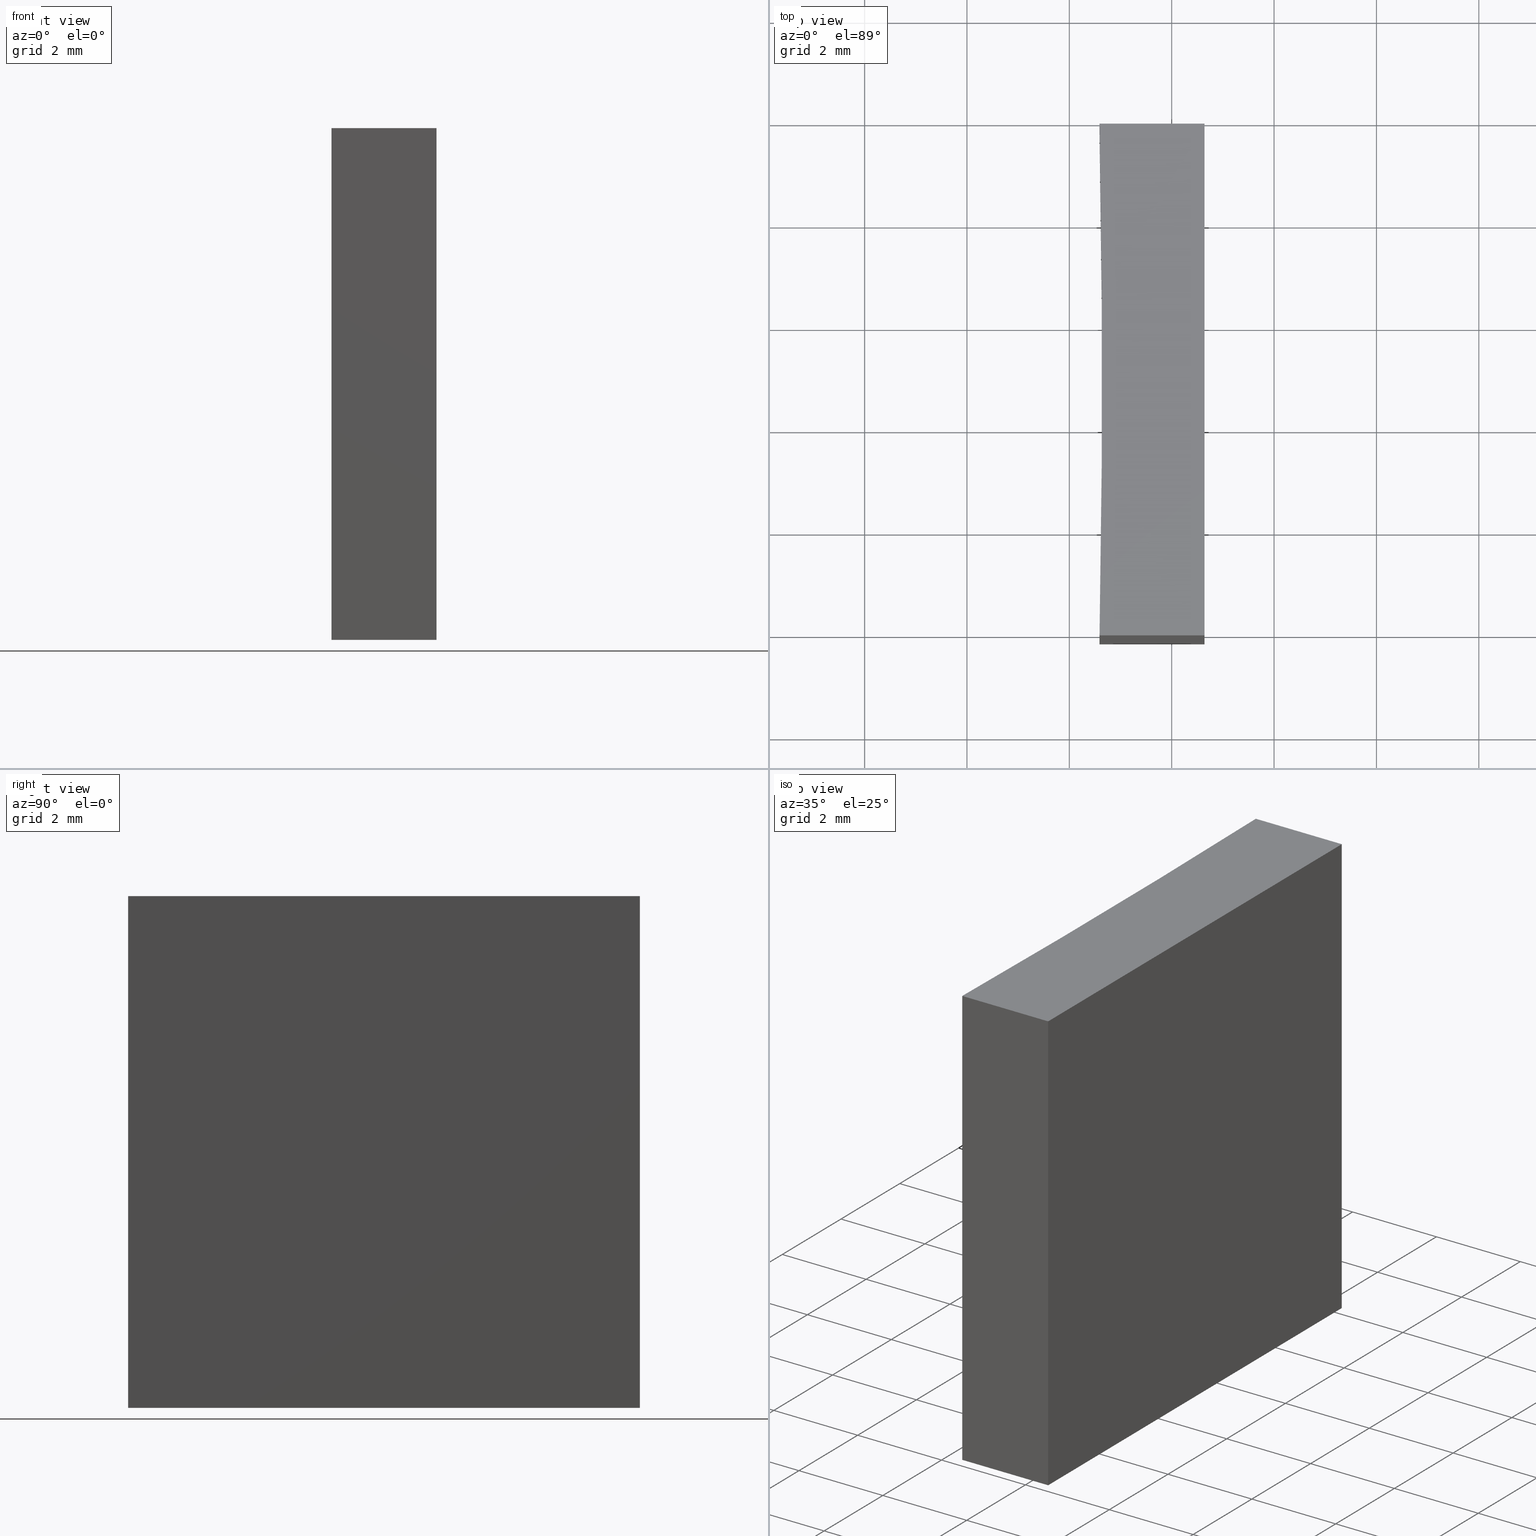
[diagram: canonical four-view strip — front | top / right | iso, engineering-drawing reading convention]
A machine part, canonical four-view strip (front | top / right | iso — engineering-drawing reading convention). The complete STEP part file that produces these views, byte-faithful:
ISO-10303-21;
HEADER;
FILE_DESCRIPTION (( 'STEP AP203' ),
    '1' );
FILE_NAME ('155573.STEP',
    '2024-05-13T06:25:16',
    ( '' ),
    ( '' ),
    'SwSTEP 2.0',
    'SolidWorks 2020',
    '' );
FILE_SCHEMA (( 'CONFIG_CONTROL_DESIGN' ));
ENDSEC;

DATA;
#1 = PRODUCT_DEFINITION ( 'δ֪', '', #94, #184 ) ;
#2 = CARTESIAN_POINT ( 'NONE',  ( 126.6401433497259035, 83.86223563107159862, 10.00000000000000000 ) ) ;
#3 = DIRECTION ( 'NONE',  ( 0.000000000000000000, -0.000000000000000000, 1.000000000000000000 ) ) ;
#4 = CC_DESIGN_APPROVAL ( #212, ( #94 ) ) ;
#5 = VERTEX_POINT ( 'NONE', #122 ) ;
#6 = APPROVAL_ROLE ( '' ) ;
#7 = CARTESIAN_POINT ( 'NONE',  ( 124.5901433497258921, 93.86223563107158441, 0.000000000000000000 ) ) ;
#8 = CARTESIAN_POINT ( 'NONE',  ( 124.5901433497259063, 83.86223563107159862, 10.00000000000000000 ) ) ;
#9 = ORIENTED_EDGE ( 'NONE', *, *, #74, .F. ) ;
#10 = PERSON_AND_ORGANIZATION ( #73, #114 ) ;
#11 = CARTESIAN_POINT ( 'NONE',  ( 126.6401433497259035, 93.86223563107158441, 10.00000000000000000 ) ) ;
#12 = DIRECTION ( 'NONE',  ( -0.000000000000000000, -0.000000000000000000, -1.000000000000000000 ) ) ;
#13 = ORIENTED_EDGE ( 'NONE', *, *, #34, .F. ) ;
#14 = DIRECTION ( 'NONE',  ( 1.000000000000000000, 0.000000000000000000, -0.000000000000000000 ) ) ;
#15 = PERSON_AND_ORGANIZATION_ROLE ( 'design_supplier' ) ;
#16 = DATE_AND_TIME ( #36, #118 ) ;
#17 = PLANE ( 'NONE',  #116 ) ;
#18 = PERSON_AND_ORGANIZATION ( #73, #114 ) ;
#19 = CC_DESIGN_APPROVAL ( #42, ( #131 ) ) ;
#20 = EDGE_CURVE ( 'NONE', #5, #26, #126, .T. ) ;
#21 = VECTOR ( 'NONE', #44, 1000.000000000000000 ) ;
#22 = ADVANCED_FACE ( 'NONE', ( #79 ), #120, .F. ) ;
#23 = DIRECTION ( 'NONE',  ( 0.000000000000000000, 0.000000000000000000, 1.000000000000000000 ) ) ;
#24 = ORIENTED_EDGE ( 'NONE', *, *, #109, .F. ) ;
#25 = ADVANCED_FACE ( 'NONE', ( #60 ), #229, .F. ) ;
#26 = VERTEX_POINT ( 'NONE', #214 ) ;
#27 = CARTESIAN_POINT ( 'NONE',  ( 126.6401433497259035, 93.86223563107158441, 10.00000000000000000 ) ) ;
#28 = ORIENTED_EDGE ( 'NONE', *, *, #20, .T. ) ;
#29 = APPROVAL_STATUS ( 'not_yet_approved' ) ;
#30 = ORIENTED_EDGE ( 'NONE', *, *, #138, .T. ) ;
#31 = ORIENTED_EDGE ( 'NONE', *, *, #109, .T. ) ;
#32 = PRODUCT_DEFINITION_SHAPE ( 'NONE', 'NONE',  #1 ) ;
#33 = CARTESIAN_POINT ( 'NONE',  ( 124.5901433497258921, 93.86223563107158441, 10.00000000000000000 ) ) ;
#34 = EDGE_CURVE ( 'NONE', #124, #5, #201, .T. ) ;
#35 = VECTOR ( 'NONE', #40, 1000.000000000000000 ) ;
#36 = CALENDAR_DATE ( 2024, 13, 5 ) ;
#37 =( GEOMETRIC_REPRESENTATION_CONTEXT ( 3 ) GLOBAL_UNCERTAINTY_ASSIGNED_CONTEXT ( ( #46 ) ) GLOBAL_UNIT_ASSIGNED_CONTEXT ( ( #61, #58, #230 ) ) REPRESENTATION_CONTEXT ( 'NONE', 'WORKASPACE' ) );
#38 = ADVANCED_FACE ( 'NONE', ( #48 ), #128, .F. ) ;
#39 = ORIENTED_EDGE ( 'NONE', *, *, #130, .F. ) ;
#40 = DIRECTION ( 'NONE',  ( -0.000000000000000000, 1.000000000000000000, -0.000000000000000000 ) ) ;
#41 = AXIS2_PLACEMENT_3D ( 'NONE', #70, #153, #87 ) ;
#42 = APPROVAL ( #174, 'δָ��' ) ;
#43 = ORIENTED_EDGE ( 'NONE', *, *, #74, .T. ) ;
#44 = DIRECTION ( 'NONE',  ( -0.000000000000000000, -0.000000000000000000, -1.000000000000000000 ) ) ;
#45 = DIRECTION ( 'NONE',  ( -0.000000000000000000, -0.000000000000000000, -1.000000000000000000 ) ) ;
#46 = UNCERTAINTY_MEASURE_WITH_UNIT (LENGTH_MEASURE( 1.000000000000000082E-05 ), #61, 'distance_accuracy_value', 'NONE');
#47 = LINE ( 'NONE', #27, #35 ) ;
#48 = FACE_OUTER_BOUND ( 'NONE', #169, .T. ) ;
#49 = FACE_OUTER_BOUND ( 'NONE', #165, .T. ) ;
#50 = APPROVAL_PERSON_ORGANIZATION ( #88, #42, #236 ) ;
#51 = LINE ( 'NONE', #132, #189 ) ;
#52 = ADVANCED_FACE ( 'NONE', ( #85 ), #106, .F. ) ;
#53 = COORDINATED_UNIVERSAL_TIME_OFFSET ( 8, 0, .AHEAD. ) ;
#54 = PRODUCT ( '155573', '155573', '', ( #78 ) ) ;
#55 = DATE_AND_TIME ( #173, #223 ) ;
#56 = ORIENTED_EDGE ( 'NONE', *, *, #181, .F. ) ;
#57 = VERTEX_POINT ( 'NONE', #110 ) ;
#58 =( NAMED_UNIT ( * ) PLANE_ANGLE_UNIT ( ) SI_UNIT ( $, .RADIAN. ) );
#59 = CIRCLE ( 'NONE', #154, 258.4999999999999432 ) ;
#60 = FACE_OUTER_BOUND ( 'NONE', #102, .T. ) ;
#61 =( LENGTH_UNIT ( ) NAMED_UNIT ( * ) SI_UNIT ( .MILLI., .METRE. ) );
#62 = LOCAL_TIME ( 14, 25, 16.00000000000000000, #123 ) ;
#63 = VERTEX_POINT ( 'NONE', #89 ) ;
#64 = ADVANCED_FACE ( 'NONE', ( #49 ), #17, .T. ) ;
#65 = PERSON_AND_ORGANIZATION ( #73, #114 ) ;
#66 = ORIENTED_EDGE ( 'NONE', *, *, #237, .F. ) ;
#67 = LINE ( 'NONE', #217, #134 ) ;
#68 = DIRECTION ( 'NONE',  ( 0.000000000000000000, 0.000000000000000000, 1.000000000000000000 ) ) ;
#69 = SECURITY_CLASSIFICATION_LEVEL ( 'unclassified' ) ;
#70 = CARTESIAN_POINT ( 'NONE',  ( -133.8614962271976196, 88.86223563107161283, 10.00000000000000000 ) ) ;
#71 = AXIS2_PLACEMENT_3D ( 'NONE', #8, #141, #3 ) ;
#72 = CC_DESIGN_APPROVAL ( #136, ( #1 ) ) ;
#73 = PERSON ( 'δָ��', 'δָ��', 'δָ��', ('δָ��'), ('δָ��'), ('δָ��') ) ;
#74 = EDGE_CURVE ( 'NONE', #63, #200, #205, .T. ) ;
#75 = LINE ( 'NONE', #166, #196 ) ;
#76 = APPROVAL_PERSON_ORGANIZATION ( #92, #212, #206 ) ;
#77 = CARTESIAN_POINT ( 'NONE',  ( 124.5901433497258921, 93.86223563107158441, 10.00000000000000000 ) ) ;
#78 = MECHANICAL_CONTEXT ( 'NONE', #117, 'mechanical' ) ;
#79 = FACE_OUTER_BOUND ( 'NONE', #86, .T. ) ;
#80 = CARTESIAN_POINT ( 'NONE',  ( 124.5901433497259063, 83.86223563107159862, 10.00000000000000000 ) ) ;
#81 = CC_DESIGN_DATE_AND_TIME_ASSIGNMENT ( #218, #190, ( #131 ) ) ;
#82 = EDGE_LOOP ( 'NONE', ( #56, #142, #216, #231 ) ) ;
#83 = PERSON_AND_ORGANIZATION_ROLE ( 'creator' ) ;
#84 = DIRECTION ( 'NONE',  ( -0.000000000000000000, -0.000000000000000000, -1.000000000000000000 ) ) ;
#85 = FACE_OUTER_BOUND ( 'NONE', #82, .T. ) ;
#86 = EDGE_LOOP ( 'NONE', ( #28, #99, #39, #187 ) ) ;
#87 = DIRECTION ( 'NONE',  ( 1.000000000000000000, 0.000000000000000000, 0.000000000000000000 ) ) ;
#88 = PERSON_AND_ORGANIZATION ( #73, #114 ) ;
#89 = CARTESIAN_POINT ( 'NONE',  ( 124.5901433497258921, 93.86223563107158441, 10.00000000000000000 ) ) ;
#90 = CC_DESIGN_PERSON_AND_ORGANIZATION_ASSIGNMENT ( #238, #149, ( #94 ) ) ;
#91 = SHAPE_DEFINITION_REPRESENTATION ( #32, #105 ) ;
#92 = PERSON_AND_ORGANIZATION ( #73, #114 ) ;
#93 = VECTOR ( 'NONE', #84, 1000.000000000000000 ) ;
#94 = PRODUCT_DEFINITION_FORMATION_WITH_SPECIFIED_SOURCE ( '�κ�', '', #54, .NOT_KNOWN. ) ;
#95 = CLOSED_SHELL ( 'NONE', ( #25, #176, #38, #22, #64, #52 ) ) ;
#96 = CARTESIAN_POINT ( 'NONE',  ( 124.5901433497259063, 83.86223563107159862, 0.000000000000000000 ) ) ;
#97 = VERTEX_POINT ( 'NONE', #234 ) ;
#98 = PERSON_AND_ORGANIZATION_ROLE ( 'design_owner' ) ;
#99 = ORIENTED_EDGE ( 'NONE', *, *, #138, .F. ) ;
#100 = DIRECTION ( 'NONE',  ( -0.000000000000000000, -0.000000000000000000, -1.000000000000000000 ) ) ;
#101 = CC_DESIGN_PERSON_AND_ORGANIZATION_ASSIGNMENT ( #179, #98, ( #54 ) ) ;
#102 = EDGE_LOOP ( 'NONE', ( #209, #24, #9, #30 ) ) ;
#103 = DIRECTION ( 'NONE',  ( 1.000000000000000000, 0.000000000000000000, 0.000000000000000000 ) ) ;
#104 = DIRECTION ( 'NONE',  ( -1.000000000000000000, -0.000000000000000000, -0.000000000000000000 ) ) ;
#105 = ADVANCED_BREP_SHAPE_REPRESENTATION ( '155573', ( #133, #160 ), #37 ) ;
#106 = PLANE ( 'NONE',  #127 ) ;
#107 = ORIENTED_EDGE ( 'NONE', *, *, #175, .T. ) ;
#108 = DIRECTION ( 'NONE',  ( 0.000000000000000000, 0.000000000000000000, 1.000000000000000000 ) ) ;
#109 = EDGE_CURVE ( 'NONE', #200, #97, #67, .T. ) ;
#110 = CARTESIAN_POINT ( 'NONE',  ( 126.6401433497259035, 83.86223563107159862, 0.000000000000000000 ) ) ;
#111 = VECTOR ( 'NONE', #100, 1000.000000000000000 ) ;
#112 = COORDINATED_UNIVERSAL_TIME_OFFSET ( 8, 0, .AHEAD. ) ;
#113 = DIRECTION ( 'NONE',  ( -1.000000000000000000, 0.000000000000000000, 0.000000000000000000 ) ) ;
#114 = ORGANIZATION ( 'δָ��', 'δָ��', '' ) ;
#115 = CALENDAR_DATE ( 2024, 13, 5 ) ;
#116 = AXIS2_PLACEMENT_3D ( 'NONE', #148, #68, #129 ) ;
#117 = APPLICATION_CONTEXT ( 'configuration controlled 3d designs of mechanical parts and assemblies' ) ;
#118 = LOCAL_TIME ( 14, 25, 16.00000000000000000, #135 ) ;
#119 = FACE_OUTER_BOUND ( 'NONE', #225, .T. ) ;
#120 = PLANE ( 'NONE',  #219 ) ;
#121 = LINE ( 'NONE', #96, #213 ) ;
#122 = CARTESIAN_POINT ( 'NONE',  ( 126.6401433497259035, 93.86223563107158441, 0.000000000000000000 ) ) ;
#123 = COORDINATED_UNIVERSAL_TIME_OFFSET ( 8, 0, .AHEAD. ) ;
#124 = VERTEX_POINT ( 'NONE', #150 ) ;
#125 = CARTESIAN_POINT ( 'NONE',  ( 124.5901433497259063, 83.86223563107159862, 10.00000000000000000 ) ) ;
#126 = LINE ( 'NONE', #7, #233 ) ;
#127 = AXIS2_PLACEMENT_3D ( 'NONE', #157, #232, #14 ) ;
#128 = PLANE ( 'NONE',  #221 ) ;
#129 = DIRECTION ( 'NONE',  ( 1.000000000000000000, 0.000000000000000000, -0.000000000000000000 ) ) ;
#130 = EDGE_CURVE ( 'NONE', #124, #63, #51, .T. ) ;
#131 = SECURITY_CLASSIFICATION ( '', '', #69 ) ;
#132 = CARTESIAN_POINT ( 'NONE',  ( 124.5901433497258921, 93.86223563107158441, 10.00000000000000000 ) ) ;
#133 = MANIFOLD_SOLID_BREP ( '͹̨-����1', #95 ) ;
#134 = VECTOR ( 'NONE', #12, 1000.000000000000000 ) ;
#135 = COORDINATED_UNIVERSAL_TIME_OFFSET ( 8, 0, .AHEAD. ) ;
#136 = APPROVAL ( #29, 'δָ��' ) ;
#137 = PERSON_AND_ORGANIZATION_ROLE ( 'classification_officer' ) ;
#138 = EDGE_CURVE ( 'NONE', #63, #26, #191, .T. ) ;
#139 = ORIENTED_EDGE ( 'NONE', *, *, #239, .T. ) ;
#140 = APPLICATION_CONTEXT ( 'configuration controlled 3d designs of mechanical parts and assemblies' ) ;
#141 = DIRECTION ( 'NONE',  ( 0.000000000000000000, 1.000000000000000000, 0.000000000000000000 ) ) ;
#142 = ORIENTED_EDGE ( 'NONE', *, *, #20, .F. ) ;
#143 = CARTESIAN_POINT ( 'NONE',  ( 126.6401433497259035, 83.86223563107159862, 10.00000000000000000 ) ) ;
#144 = CARTESIAN_POINT ( 'NONE',  ( -133.8614962271976196, 88.86223563107161283, 10.00000000000000000 ) ) ;
#145 = ORIENTED_EDGE ( 'NONE', *, *, #194, .T. ) ;
#146 = CALENDAR_DATE ( 2024, 13, 5 ) ;
#147 = ORIENTED_EDGE ( 'NONE', *, *, #130, .T. ) ;
#148 = CARTESIAN_POINT ( 'NONE',  ( -133.8614962271976196, 88.86223563107161283, 10.00000000000000000 ) ) ;
#149 = PERSON_AND_ORGANIZATION_ROLE ( 'creator' ) ;
#150 = CARTESIAN_POINT ( 'NONE',  ( 126.6401433497259035, 93.86223563107158441, 10.00000000000000000 ) ) ;
#151 = LOCAL_TIME ( 14, 25, 16.00000000000000000, #170 ) ;
#152 = APPROVAL_DATE_TIME ( #16, #42 ) ;
#153 = DIRECTION ( 'NONE',  ( -0.000000000000000000, -0.000000000000000000, -1.000000000000000000 ) ) ;
#154 = AXIS2_PLACEMENT_3D ( 'NONE', #228, #222, #162 ) ;
#155 = CC_DESIGN_PERSON_AND_ORGANIZATION_ASSIGNMENT ( #10, #83, ( #1 ) ) ;
#156 = DATE_TIME_ROLE ( 'creation_date' ) ;
#157 = CARTESIAN_POINT ( 'NONE',  ( -133.8614962271976196, 88.86223563107161283, 0.000000000000000000 ) ) ;
#158 = PERSON_AND_ORGANIZATION ( #73, #114 ) ;
#159 = DATE_AND_TIME ( #146, #151 ) ;
#160 = AXIS2_PLACEMENT_3D ( 'NONE', #198, #23, #103 ) ;
#161 = EDGE_CURVE ( 'NONE', #227, #124, #47, .T. ) ;
#162 = DIRECTION ( 'NONE',  ( 1.000000000000000000, 0.000000000000000000, 0.000000000000000000 ) ) ;
#163 = LOCAL_TIME ( 14, 25, 16.00000000000000000, #53 ) ;
#164 = DIRECTION ( 'NONE',  ( -0.000000000000000000, 1.000000000000000000, -0.000000000000000000 ) ) ;
#165 = EDGE_LOOP ( 'NONE', ( #43, #180, #220, #147 ) ) ;
#166 = CARTESIAN_POINT ( 'NONE',  ( 126.6401433497259035, 93.86223563107158441, 0.000000000000000000 ) ) ;
#167 = DIRECTION ( 'NONE',  ( 0.000000000000000000, -1.000000000000000000, 0.000000000000000000 ) ) ;
#168 = DIRECTION ( 'NONE',  ( 1.000000000000000000, 0.000000000000000000, 0.000000000000000000 ) ) ;
#169 = EDGE_LOOP ( 'NONE', ( #145, #13, #210, #107 ) ) ;
#170 = COORDINATED_UNIVERSAL_TIME_OFFSET ( 8, 0, .AHEAD. ) ;
#171 = CC_DESIGN_PERSON_AND_ORGANIZATION_ASSIGNMENT ( #158, #15, ( #94 ) ) ;
#172 = APPROVAL_STATUS ( 'not_yet_approved' ) ;
#173 = CALENDAR_DATE ( 2024, 13, 5 ) ;
#174 = APPROVAL_STATUS ( 'not_yet_approved' ) ;
#175 = EDGE_CURVE ( 'NONE', #227, #57, #183, .T. ) ;
#176 = ADVANCED_FACE ( 'NONE', ( #119 ), #215, .F. ) ;
#177 = APPROVAL_PERSON_ORGANIZATION ( #65, #136, #6 ) ;
#178 = APPLICATION_PROTOCOL_DEFINITION ( 'international standard', 'config_control_design', 1994, #117 ) ;
#179 = PERSON_AND_ORGANIZATION ( #73, #114 ) ;
#180 = ORIENTED_EDGE ( 'NONE', *, *, #237, .T. ) ;
#181 = EDGE_CURVE ( 'NONE', #26, #97, #59, .T. ) ;
#182 = APPLICATION_PROTOCOL_DEFINITION ( 'international standard', 'config_control_design', 1994, #140 ) ;
#183 = LINE ( 'NONE', #143, #21 ) ;
#184 = DESIGN_CONTEXT ( 'detailed design', #140, 'design' ) ;
#185 = CALENDAR_DATE ( 2024, 13, 5 ) ;
#186 = DIRECTION ( 'NONE',  ( -1.000000000000000000, 0.000000000000000000, 0.000000000000000000 ) ) ;
#187 = ORIENTED_EDGE ( 'NONE', *, *, #34, .T. ) ;
#188 = CARTESIAN_POINT ( 'NONE',  ( 126.6401433497259035, 93.86223563107158441, 10.00000000000000000 ) ) ;
#189 = VECTOR ( 'NONE', #204, 1000.000000000000000 ) ;
#190 = DATE_TIME_ROLE ( 'classification_date' ) ;
#191 = LINE ( 'NONE', #33, #111 ) ;
#192 = APPROVAL_DATE_TIME ( #55, #212 ) ;
#193 = AXIS2_PLACEMENT_3D ( 'NONE', #144, #45, #186 ) ;
#194 = EDGE_CURVE ( 'NONE', #57, #5, #75, .T. ) ;
#195 = CC_DESIGN_SECURITY_CLASSIFICATION ( #131, ( #94 ) ) ;
#196 = VECTOR ( 'NONE', #164, 1000.000000000000000 ) ;
#197 = PRODUCT_RELATED_PRODUCT_CATEGORY ( 'detail', '', ( #54 ) ) ;
#198 = CARTESIAN_POINT ( 'NONE',  ( 0.000000000000000000, 0.000000000000000000, 0.000000000000000000 ) ) ;
#199 = APPROVAL_DATE_TIME ( #226, #136 ) ;
#200 = VERTEX_POINT ( 'NONE', #80 ) ;
#201 = LINE ( 'NONE', #11, #93 ) ;
#202 = DIRECTION ( 'NONE',  ( 1.000000000000000000, 0.000000000000000000, 0.000000000000000000 ) ) ;
#203 = ORIENTED_EDGE ( 'NONE', *, *, #175, .F. ) ;
#204 = DIRECTION ( 'NONE',  ( -1.000000000000000000, -0.000000000000000000, -0.000000000000000000 ) ) ;
#205 = CIRCLE ( 'NONE', #41, 258.4999999999999432 ) ;
#206 = APPROVAL_ROLE ( '' ) ;
#207 = VECTOR ( 'NONE', #168, 1000.000000000000000 ) ;
#208 = CC_DESIGN_DATE_AND_TIME_ASSIGNMENT ( #159, #156, ( #1 ) ) ;
#209 = ORIENTED_EDGE ( 'NONE', *, *, #181, .T. ) ;
#210 = ORIENTED_EDGE ( 'NONE', *, *, #161, .F. ) ;
#211 = DIRECTION ( 'NONE',  ( 0.000000000000000000, -0.000000000000000000, -1.000000000000000000 ) ) ;
#212 = APPROVAL ( #172, 'δָ��' ) ;
#213 = VECTOR ( 'NONE', #202, 1000.000000000000000 ) ;
#214 = CARTESIAN_POINT ( 'NONE',  ( 124.5901433497258921, 93.86223563107158441, 0.000000000000000000 ) ) ;
#215 = PLANE ( 'NONE',  #71 ) ;
#216 = ORIENTED_EDGE ( 'NONE', *, *, #194, .F. ) ;
#217 = CARTESIAN_POINT ( 'NONE',  ( 124.5901433497259063, 83.86223563107159862, 10.00000000000000000 ) ) ;
#218 = DATE_AND_TIME ( #115, #163 ) ;
#219 = AXIS2_PLACEMENT_3D ( 'NONE', #77, #167, #211 ) ;
#220 = ORIENTED_EDGE ( 'NONE', *, *, #161, .T. ) ;
#221 = AXIS2_PLACEMENT_3D ( 'NONE', #188, #113, #108 ) ;
#222 = DIRECTION ( 'NONE',  ( -0.000000000000000000, -0.000000000000000000, -1.000000000000000000 ) ) ;
#223 = LOCAL_TIME ( 14, 25, 16.00000000000000000, #112 ) ;
#224 = LINE ( 'NONE', #125, #207 ) ;
#225 = EDGE_LOOP ( 'NONE', ( #139, #203, #66, #31 ) ) ;
#226 = DATE_AND_TIME ( #185, #62 ) ;
#227 = VERTEX_POINT ( 'NONE', #2 ) ;
#228 = CARTESIAN_POINT ( 'NONE',  ( -133.8614962271976196, 88.86223563107161283, 0.000000000000000000 ) ) ;
#229 = CYLINDRICAL_SURFACE ( 'NONE', #193, 258.4999999999999432 ) ;
#230 =( NAMED_UNIT ( * ) SI_UNIT ( $, .STERADIAN. ) SOLID_ANGLE_UNIT ( ) );
#231 = ORIENTED_EDGE ( 'NONE', *, *, #239, .F. ) ;
#232 = DIRECTION ( 'NONE',  ( 0.000000000000000000, 0.000000000000000000, 1.000000000000000000 ) ) ;
#233 = VECTOR ( 'NONE', #104, 1000.000000000000000 ) ;
#234 = CARTESIAN_POINT ( 'NONE',  ( 124.5901433497259063, 83.86223563107159862, 0.000000000000000000 ) ) ;
#235 = CC_DESIGN_PERSON_AND_ORGANIZATION_ASSIGNMENT ( #18, #137, ( #131 ) ) ;
#236 = APPROVAL_ROLE ( '' ) ;
#237 = EDGE_CURVE ( 'NONE', #200, #227, #224, .T. ) ;
#238 = PERSON_AND_ORGANIZATION ( #73, #114 ) ;
#239 = EDGE_CURVE ( 'NONE', #97, #57, #121, .T. ) ;
ENDSEC;
END-ISO-10303-21;
